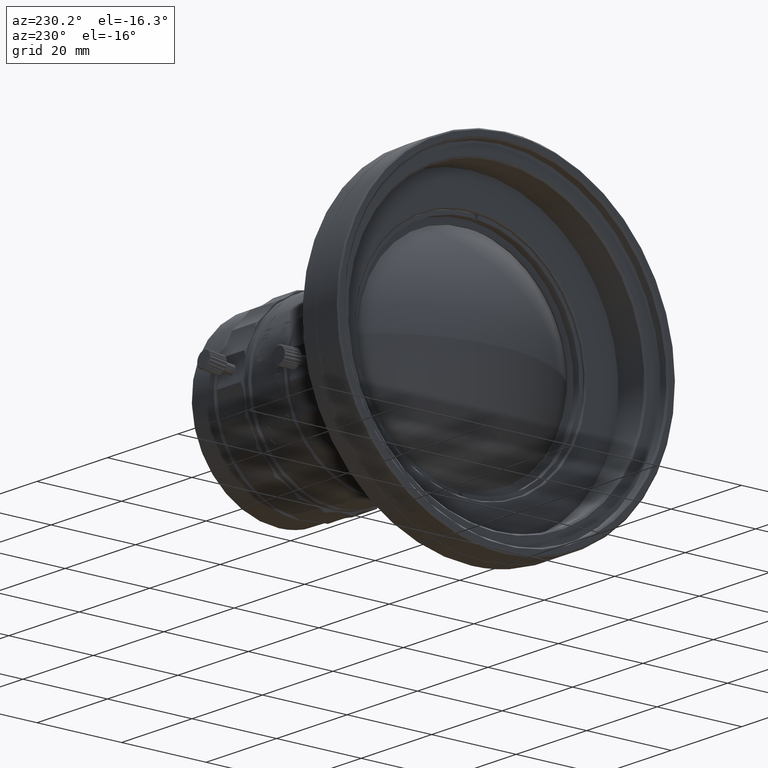
[diagram: clean part render]
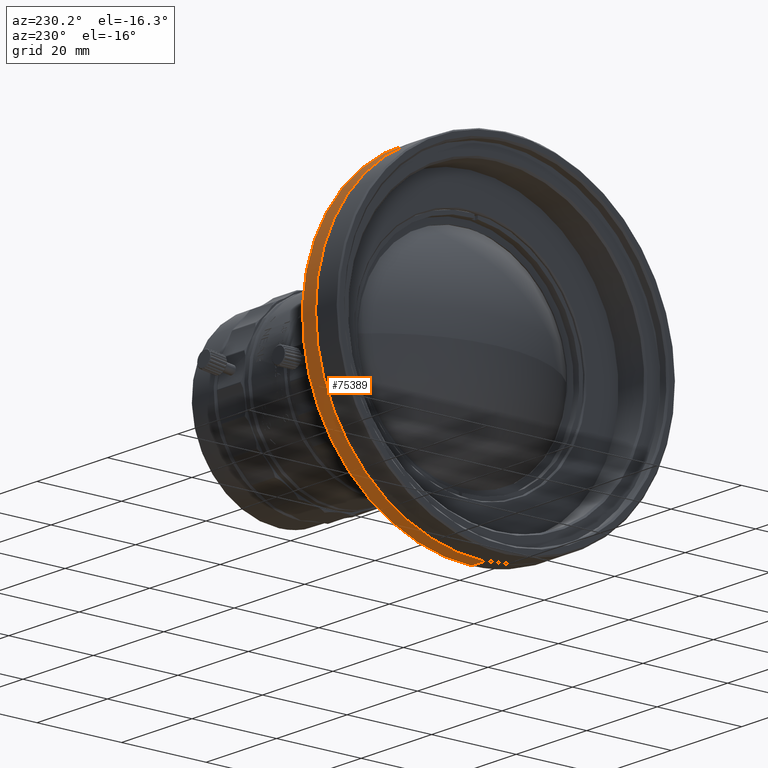
[diagram: same view with one face highlighted and labeled with its STEP entity id]
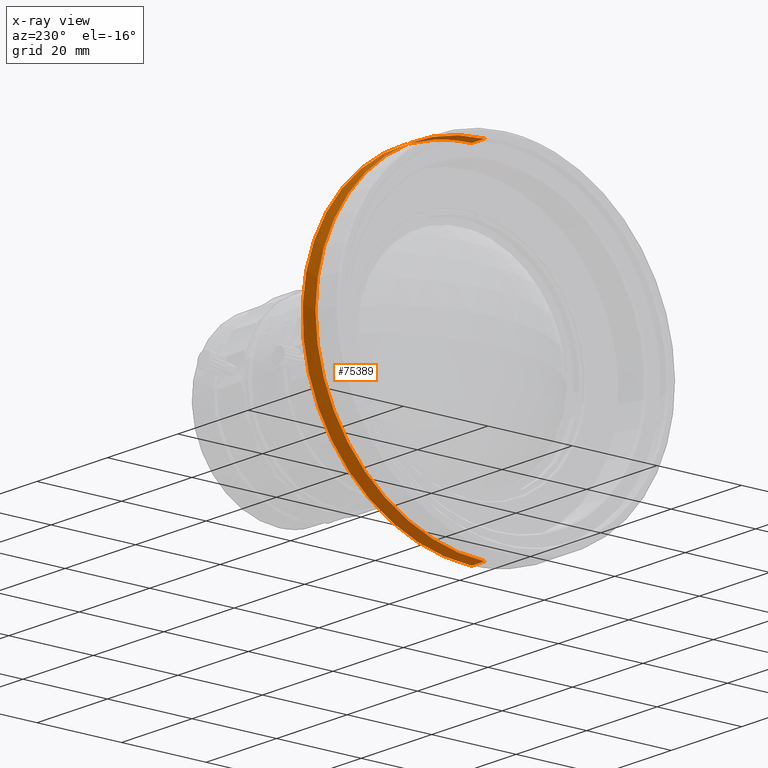
[diagram: x-ray of the same camera — body ghosted, the highlighted face saturated]
A machine part, auxiliary view. The second image highlights one B-rep face of the part: STEP entity #75389.
The next image is the same camera in x-ray: the body ghosted, the highlighted face saturated — about 0% of this face is hidden behind the body in this view.
In plain terms, the highlighted cylindrical surface (partial cylindrical patch) has radius 40 mm, axis along (-1, 0, 0).
Its self-contained STEP definition (entity closure, byte-faithful):
#711 = DIRECTION ( 'NONE',  ( -1.000000000000000000, 0.000000000000000000, 0.000000000000000000 ) ) ;
#1250 = CARTESIAN_POINT ( 'NONE',  ( -5.209999999999999964, -1.640827428122651082E-08, -40.00000000000002132 ) ) ;
#1423 = DIRECTION ( 'NONE',  ( 0.000000000000000000, -4.102068685600089772E-10, -1.000000000000000000 ) ) ;
#5748 = DIRECTION ( 'NONE',  ( -1.000000000000000000, -1.387778780971208015E-17, -2.775557561183374684E-17 ) ) ;
#5758 = VERTEX_POINT ( 'NONE', #72844 ) ;
#9387 = EDGE_CURVE ( 'NONE', #16291, #5758, #13534, .T. ) ;
#13190 = DIRECTION ( 'NONE',  ( 0.000000000000000000, -4.102068684730399314E-10, -1.000000000000000000 ) ) ;
#13534 = CIRCLE ( 'NONE', #26138, 40.00000000000000000 ) ;
#14234 = VERTEX_POINT ( 'NONE', #69389 ) ;
#14557 = CIRCLE ( 'NONE', #29612, 40.00000000000000000 ) ;
#16291 = VERTEX_POINT ( 'NONE', #30687 ) ;
#19117 = CYLINDRICAL_SURFACE ( 'NONE', #27624, 40.00000000000000000 ) ;
#19491 = CARTESIAN_POINT ( 'NONE',  ( -3.360000000000000320, 4.611734357098290040E-16, 0.000000000000000000 ) ) ;
#21973 = ORIENTED_EDGE ( 'NONE', *, *, #65614, .F. ) ;
#23777 = EDGE_CURVE ( 'NONE', #65416, #74022, #24841, .T. ) ;
#24841 = LINE ( 'NONE', #1250, #25568 ) ;
#25225 = DIRECTION ( 'NONE',  ( -1.000000000000000000, 0.000000000000000000, 0.000000000000000000 ) ) ;
#25568 = VECTOR ( 'NONE', #25225, 1000.000000000000000 ) ;
#26138 = AXIS2_PLACEMENT_3D ( 'NONE', #43526, #67819, #49392 ) ;
#27624 = AXIS2_PLACEMENT_3D ( 'NONE', #43038, #66942, #13190 ) ;
#29612 = AXIS2_PLACEMENT_3D ( 'NONE', #19491, #55916, #1423 ) ;
#30570 = CARTESIAN_POINT ( 'NONE',  ( -5.209999999999999964, 1.640827029802949255E-08, 39.99999999999997868 ) ) ;
#30687 = CARTESIAN_POINT ( 'NONE',  ( -3.360000000000000320, 8.780487820605376470, 39.02439024036377901 ) ) ;
#36766 = DIRECTION ( 'NONE',  ( 2.168404344971008868E-17, -2.734712456377410027E-10, -1.000000000000000000 ) ) ;
#41867 = CARTESIAN_POINT ( 'NONE',  ( -7.060000000000000497, -1.057640368751429872E-18, 8.881784197001249168E-15 ) ) ;
#41923 = AXIS2_PLACEMENT_3D ( 'NONE', #41867, #5748, #36766 ) ;
#43038 = CARTESIAN_POINT ( 'NONE',  ( -5.209999999999999964, 4.576950885012799654E-16, -2.220446049250309925E-14 ) ) ;
#43526 = CARTESIAN_POINT ( 'NONE',  ( -3.360000000000000320, 4.611734357098290040E-16, 0.000000000000000000 ) ) ;
#44540 = CARTESIAN_POINT ( 'NONE',  ( -3.360000000000000320, -1.640827428122650751E-08, -40.00000000000000000 ) ) ;
#48156 = EDGE_LOOP ( 'NONE', ( #51514, #51927, #59344, #71478, #21973 ) ) ;
#49392 = DIRECTION ( 'NONE',  ( 0.000000000000000000, -4.102068685600089772E-10, -1.000000000000000000 ) ) ;
#51514 = ORIENTED_EDGE ( 'NONE', *, *, #56967, .F. ) ;
#51927 = ORIENTED_EDGE ( 'NONE', *, *, #9387, .F. ) ;
#55916 = DIRECTION ( 'NONE',  ( 1.000000000000000000, -1.387778781190699934E-17, 5.692763880862630165E-27 ) ) ;
#56967 = EDGE_CURVE ( 'NONE', #5758, #14234, #66238, .T. ) ;
#59344 = ORIENTED_EDGE ( 'NONE', *, *, #70330, .F. ) ;
#61825 = FACE_OUTER_BOUND ( 'NONE', #48156, .T. ) ;
#65416 = VERTEX_POINT ( 'NONE', #44540 ) ;
#65614 = EDGE_CURVE ( 'NONE', #14234, #74022, #66933, .T. ) ;
#65998 = CARTESIAN_POINT ( 'NONE',  ( -7.059999999999999609, -1.093884982656728234E-08, -39.99999999999999289 ) ) ;
#66238 = LINE ( 'NONE', #30570, #76414 ) ;
#66933 = CIRCLE ( 'NONE', #41923, 40.00000000000000000 ) ;
#66942 = DIRECTION ( 'NONE',  ( -1.000000000000000000, 0.000000000000000000, 0.000000000000000000 ) ) ;
#67819 = DIRECTION ( 'NONE',  ( 1.000000000000000000, -1.387778781190699934E-17, 5.692763880862630165E-27 ) ) ;
#69389 = CARTESIAN_POINT ( 'NONE',  ( -7.060000000000001386, 1.640827029802950248E-08, 40.00000000000000711 ) ) ;
#70330 = EDGE_CURVE ( 'NONE', #65416, #16291, #14557, .T. ) ;
#71478 = ORIENTED_EDGE ( 'NONE', *, *, #23777, .T. ) ;
#72844 = CARTESIAN_POINT ( 'NONE',  ( -3.360000000000000320, 1.640827029802949917E-08, 40.00000000000000000 ) ) ;
#74022 = VERTEX_POINT ( 'NONE', #65998 ) ;
#75389 = ADVANCED_FACE ( 'NONE', ( #61825 ), #19117, .T. ) ;
#76414 = VECTOR ( 'NONE', #711, 1000.000000000000000 ) ;